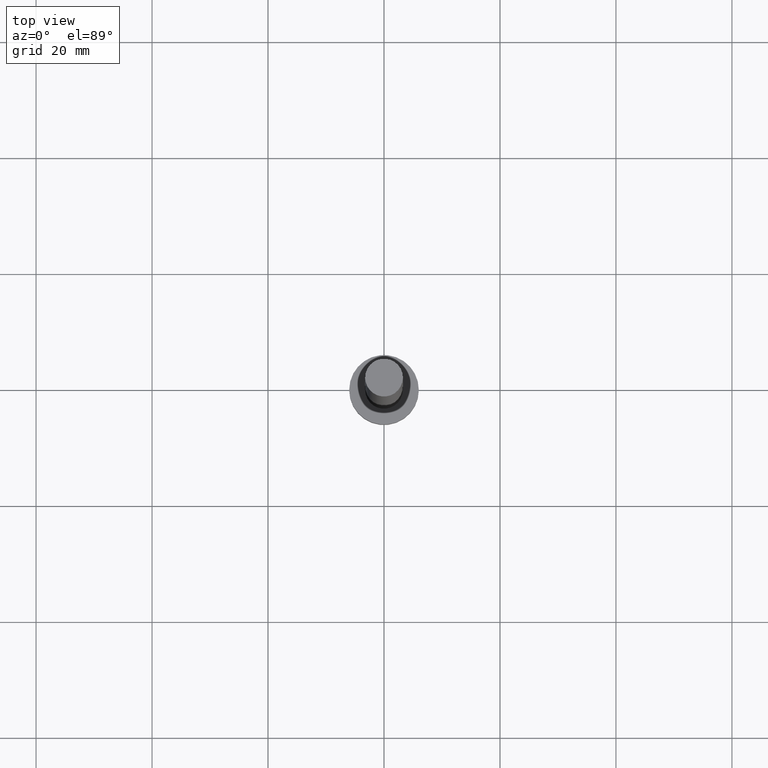
[diagram: clean part render]
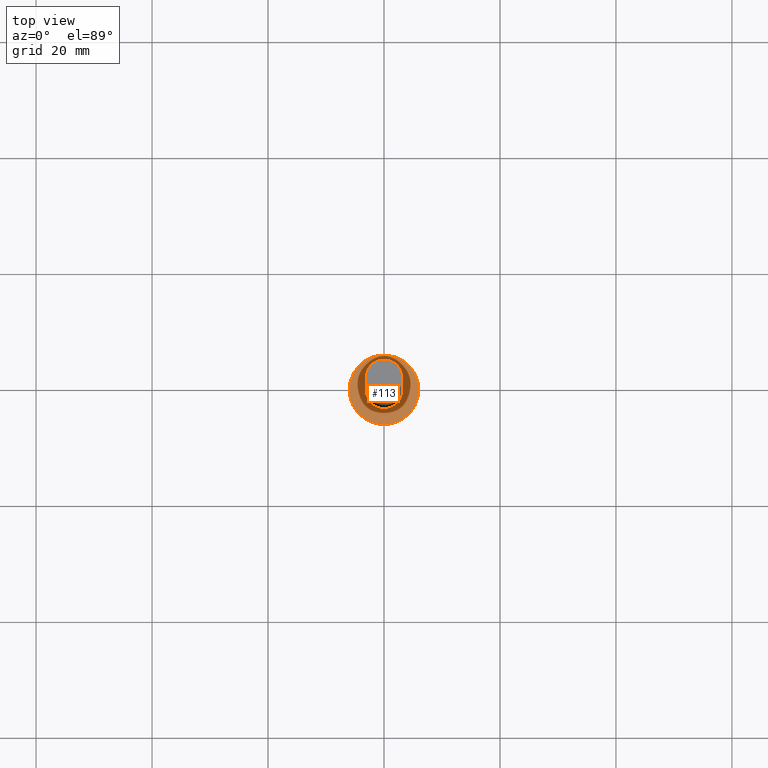
[diagram: same view with one face highlighted and labeled with its STEP entity id]
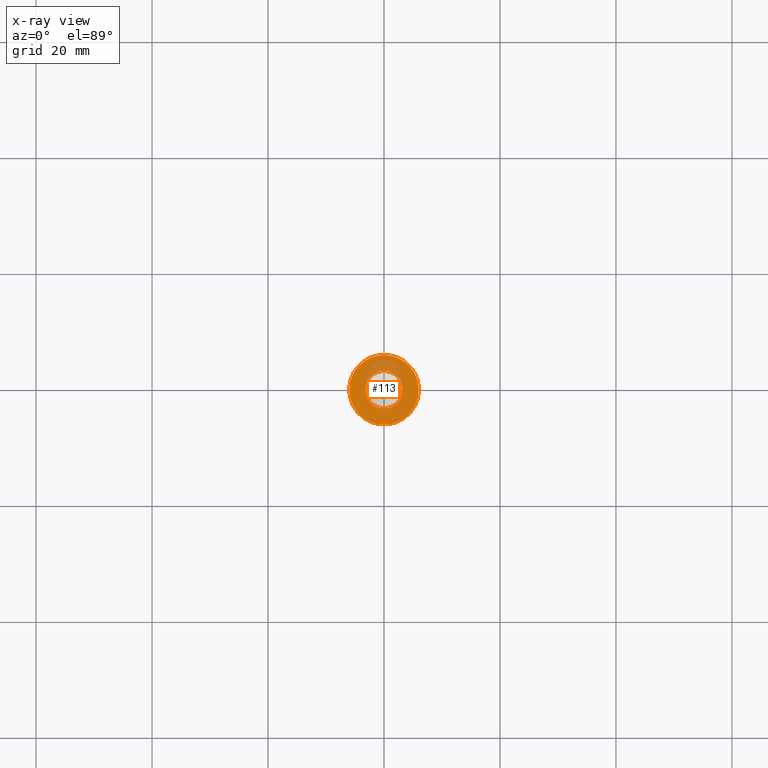
[diagram: x-ray of the same camera — body ghosted, the highlighted face saturated]
A machine part, top view. The second image highlights one B-rep face of the part: STEP entity #113.
The next image is the same camera in x-ray: the body ghosted, the highlighted face saturated — about 17% of this face is hidden behind the body in this view.
In plain terms, the highlighted planar face has unit normal (0, 0, 1).
Its self-contained STEP definition (entity closure, byte-faithful):
#2 = FACE_OUTER_BOUND ( 'NONE', #142, .T. ) ;
#5 = AXIS2_PLACEMENT_3D ( 'NONE', #32, #105, #134 ) ;
#11 = DIRECTION ( 'NONE',  ( 1.000000000000000000, 0.000000000000000000, 0.000000000000000000 ) ) ;
#26 = EDGE_CURVE ( 'NONE', #120, #184, #118, .T. ) ;
#28 = CARTESIAN_POINT ( 'NONE',  ( 6.000000000000000888, 7.347880794884120722E-16, 5.000000000000000000 ) ) ;
#32 = CARTESIAN_POINT ( 'NONE',  ( 0.000000000000000000, 0.000000000000000000, 5.000000000000000000 ) ) ;
#51 = DIRECTION ( 'NONE',  ( 0.000000000000000000, 0.000000000000000000, 1.000000000000000000 ) ) ;
#55 = AXIS2_PLACEMENT_3D ( 'NONE', #127, #86, #70 ) ;
#70 = DIRECTION ( 'NONE',  ( 1.000000000000000000, 0.000000000000000000, -0.000000000000000000 ) ) ;
#77 = CARTESIAN_POINT ( 'NONE',  ( -3.250000000000000444, 0.000000000000000000, 5.000000000000000000 ) ) ;
#86 = DIRECTION ( 'NONE',  ( 0.000000000000000000, 0.000000000000000000, 1.000000000000000000 ) ) ;
#89 = CARTESIAN_POINT ( 'NONE',  ( 3.250000000000000444, 3.980102097228898231E-16, 5.000000000000000000 ) ) ;
#93 = AXIS2_PLACEMENT_3D ( 'NONE', #94, #159, #195 ) ;
#94 = CARTESIAN_POINT ( 'NONE',  ( 0.000000000000000000, 0.000000000000000000, 5.000000000000000000 ) ) ;
#102 = VERTEX_POINT ( 'NONE', #28 ) ;
#104 = ORIENTED_EDGE ( 'NONE', *, *, #240, .T. ) ;
#105 = DIRECTION ( 'NONE',  ( 0.000000000000000000, 0.000000000000000000, 1.000000000000000000 ) ) ;
#106 = FACE_BOUND ( 'NONE', #186, .T. ) ;
#113 = ADVANCED_FACE ( 'NONE', ( #106, #2 ), #244, .T. ) ;
#117 = VERTEX_POINT ( 'NONE', #151 ) ;
#118 = CIRCLE ( 'NONE', #5, 3.250000000000000444 ) ;
#120 = VERTEX_POINT ( 'NONE', #89 ) ;
#127 = CARTESIAN_POINT ( 'NONE',  ( 0.000000000000000000, 0.000000000000000000, 5.000000000000000000 ) ) ;
#130 = EDGE_CURVE ( 'NONE', #184, #120, #229, .T. ) ;
#133 = EDGE_CURVE ( 'NONE', #117, #102, #187, .T. ) ;
#134 = DIRECTION ( 'NONE',  ( 1.000000000000000000, 0.000000000000000000, 0.000000000000000000 ) ) ;
#140 = AXIS2_PLACEMENT_3D ( 'NONE', #194, #156, #11 ) ;
#142 = EDGE_LOOP ( 'NONE', ( #255, #104 ) ) ;
#147 = ORIENTED_EDGE ( 'NONE', *, *, #26, .F. ) ;
#150 = ORIENTED_EDGE ( 'NONE', *, *, #130, .F. ) ;
#151 = CARTESIAN_POINT ( 'NONE',  ( -6.000000000000000888, 0.000000000000000000, 5.000000000000000000 ) ) ;
#155 = CARTESIAN_POINT ( 'NONE',  ( 0.000000000000000000, 0.000000000000000000, 5.000000000000000000 ) ) ;
#156 = DIRECTION ( 'NONE',  ( 0.000000000000000000, 0.000000000000000000, 1.000000000000000000 ) ) ;
#159 = DIRECTION ( 'NONE',  ( 0.000000000000000000, 0.000000000000000000, 1.000000000000000000 ) ) ;
#175 = DIRECTION ( 'NONE',  ( 1.000000000000000000, 0.000000000000000000, 0.000000000000000000 ) ) ;
#184 = VERTEX_POINT ( 'NONE', #77 ) ;
#186 = EDGE_LOOP ( 'NONE', ( #150, #147 ) ) ;
#187 = CIRCLE ( 'NONE', #93, 6.000000000000000888 ) ;
#192 = CIRCLE ( 'NONE', #233, 6.000000000000000888 ) ;
#194 = CARTESIAN_POINT ( 'NONE',  ( 0.000000000000000000, 0.000000000000000000, 5.000000000000000000 ) ) ;
#195 = DIRECTION ( 'NONE',  ( 1.000000000000000000, 0.000000000000000000, 0.000000000000000000 ) ) ;
#229 = CIRCLE ( 'NONE', #140, 3.250000000000000444 ) ;
#233 = AXIS2_PLACEMENT_3D ( 'NONE', #155, #51, #175 ) ;
#240 = EDGE_CURVE ( 'NONE', #102, #117, #192, .T. ) ;
#244 = PLANE ( 'NONE',  #55 ) ;
#255 = ORIENTED_EDGE ( 'NONE', *, *, #133, .T. ) ;